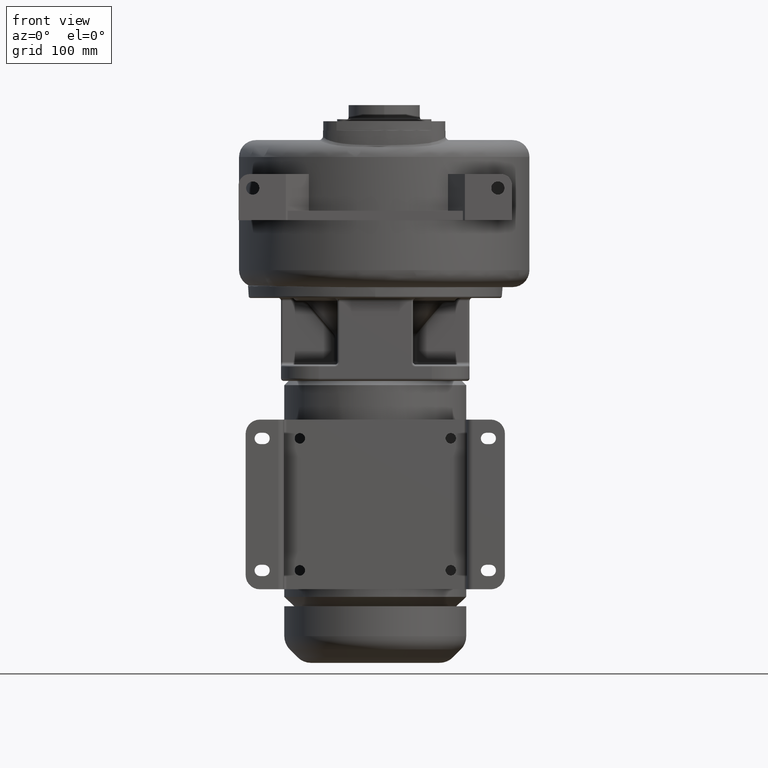
[diagram: clean part render]
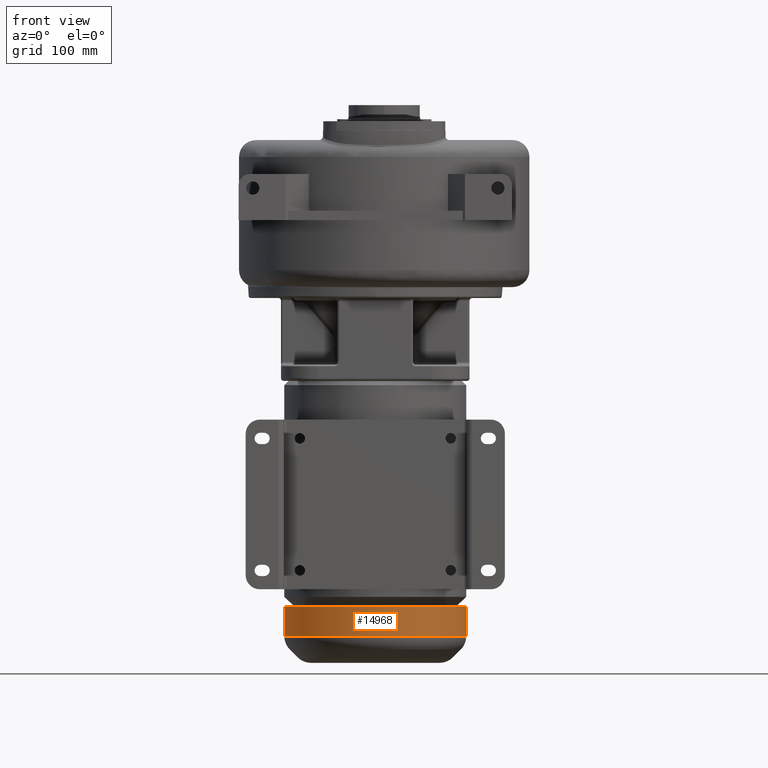
[diagram: same view with one face highlighted and labeled with its STEP entity id]
A machine part, front view. The second image highlights one B-rep face of the part: STEP entity #14968.
In plain terms, the highlighted cylindrical surface (partial cylindrical patch) has radius 96.5 mm, axis along (0, 0, 1).
Its self-contained STEP definition (entity closure, byte-faithful):
#45=DIRECTION('',(0.E0,-9.704327109272E-13,1.E0));
#46=VECTOR('',#45,3.171574305823E1);
#47=CARTESIAN_POINT('',(9.65E1,3.076223740292E-11,-2.727157430582E2));
#48=LINE('',#47,#46);
#54=CARTESIAN_POINT('',(0.E0,0.E0,-2.727157430582E2));
#55=DIRECTION('',(0.E0,0.E0,1.E0));
#56=DIRECTION('',(-1.E0,0.E0,0.E0));
#57=AXIS2_PLACEMENT_3D('',#54,#55,#56);
#59=DIRECTION('',(0.E0,9.707921941151E-13,1.E0));
#60=VECTOR('',#59,3.171574305823E1);
#61=CARTESIAN_POINT('',(-9.65E1,-3.077757793988E-11,-2.727157430582E2));
#62=LINE('',#61,#60);
#63=CARTESIAN_POINT('',(0.E0,0.E0,-2.41E2));
#64=DIRECTION('',(0.E0,0.E0,1.E0));
#65=DIRECTION('',(-1.E0,0.E0,0.E0));
#66=AXIS2_PLACEMENT_3D('',#63,#64,#65);
#13206=CARTESIAN_POINT('',(9.65E1,-1.181783161177E-14,-2.41E2));
#13207=CARTESIAN_POINT('',(-9.65E1,2.363569322354E-14,-2.41E2));
#13208=VERTEX_POINT('',#13206);
#13209=VERTEX_POINT('',#13207);
#13218=CARTESIAN_POINT('',(-9.65E1,1.181785161177E-14,-2.727157430582E2));
#13219=CARTESIAN_POINT('',(9.65E1,-2.363567322354E-14,-2.727157430582E2));
#13220=VERTEX_POINT('',#13218);
#13221=VERTEX_POINT('',#13219);
#14955=CARTESIAN_POINT('',(0.E0,0.E0,-3.01E2));
#14956=DIRECTION('',(0.E0,0.E0,1.E0));
#14957=DIRECTION('',(1.E0,0.E0,0.E0));
#14958=AXIS2_PLACEMENT_3D('',#14955,#14956,#14957);
#14959=CYLINDRICAL_SURFACE('',#14958,9.65E1);
#14961=ORIENTED_EDGE('',*,*,#14960,.F.);
#14962=ORIENTED_EDGE('',*,*,#14950,.T.);
#14964=ORIENTED_EDGE('',*,*,#14963,.T.);
#14965=ORIENTED_EDGE('',*,*,#14946,.F.);
#14966=EDGE_LOOP('',(#14961,#14962,#14964,#14965));
#14967=FACE_OUTER_BOUND('',#14966,.F.);
#14968=ADVANCED_FACE('',(#14967),#14959,.T.);
#58=CIRCLE('',#57,9.65E1);
#67=CIRCLE('',#66,9.65E1);
#14946=EDGE_CURVE('',#13221,#13208,#48,.T.);
#14950=EDGE_CURVE('',#13220,#13209,#62,.T.);
#14960=EDGE_CURVE('',#13220,#13221,#58,.T.);
#14963=EDGE_CURVE('',#13209,#13208,#67,.T.);